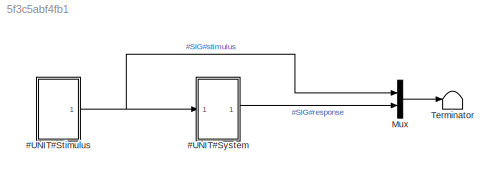
MODEL slx_5f3c5abf4fb1
KIND model
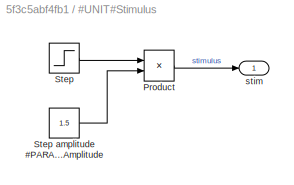
BLOCK [SubSystem] #UNIT#Stimulus
  Ports = [0, 1]
  RequestExecContextInheritance = off
BLOCK [Product] #UNIT#Stimulus/Product
  InputSameDT = off
  OutDataTypeStr = Inherit: Inherit via internal rule
  Ports = [2, 1]
  RndMeth = Floor
  SaturateOnIntegerOverflow = off
BLOCK [Step] #UNIT#Stimulus/Step
  SampleTime = 0
  Time = 0.1
BLOCK [Constant] #UNIT#Stimulus/Step amplitude #PARAM#Amplitude
  Value = 1.5
BLOCK [Outport] #UNIT#Stimulus/stim
  IconDisplay = Port number
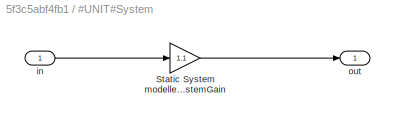
BLOCK [SubSystem] #UNIT#System
  Ports = [1, 1]
  RequestExecContextInheritance = off
BLOCK [Gain] #UNIT#System/Static System modelled by gain block #PARAM#SystemGain
  Gain = 1.1
  OutDataTypeStr = Inherit: Inherit via internal rule
  ParamDataTypeStr = Inherit: Inherit via internal rule
  SaturateOnIntegerOverflow = off
BLOCK [Inport] #UNIT#System/in
  IconDisplay = Port number
BLOCK [Outport] #UNIT#System/out
  IconDisplay = Port number
BLOCK [Mux] Mux
  DisplayOption = bar
  Inputs = 2
  Ports = [2, 1]
BLOCK [Terminator] Terminator
LINE #UNIT#Stimulus/Product:1 -> #UNIT#Stimulus/stim:1
LINE #UNIT#Stimulus/Step amplitude #PARAM#Amplitude:1 -> #UNIT#Stimulus/Product:2
LINE #UNIT#Stimulus/Step:1 -> #UNIT#Stimulus/Product:1
NET #UNIT#Stimulus:1 -> #UNIT#System:1, Mux:1
LINE #UNIT#System/Static System modelled by gain block #PARAM#SystemGain:1 -> #UNIT#System/out:1
LINE #UNIT#System/in:1 -> #UNIT#System/Static System modelled by gain block #PARAM#SystemGain:1
LINE #UNIT#System:1 -> Mux:2
LINE Mux:1 -> Terminator:1
note: NET lines group one-source signal fan-out (src -> all destinations, sorted); 1:1 wires keep LINE
